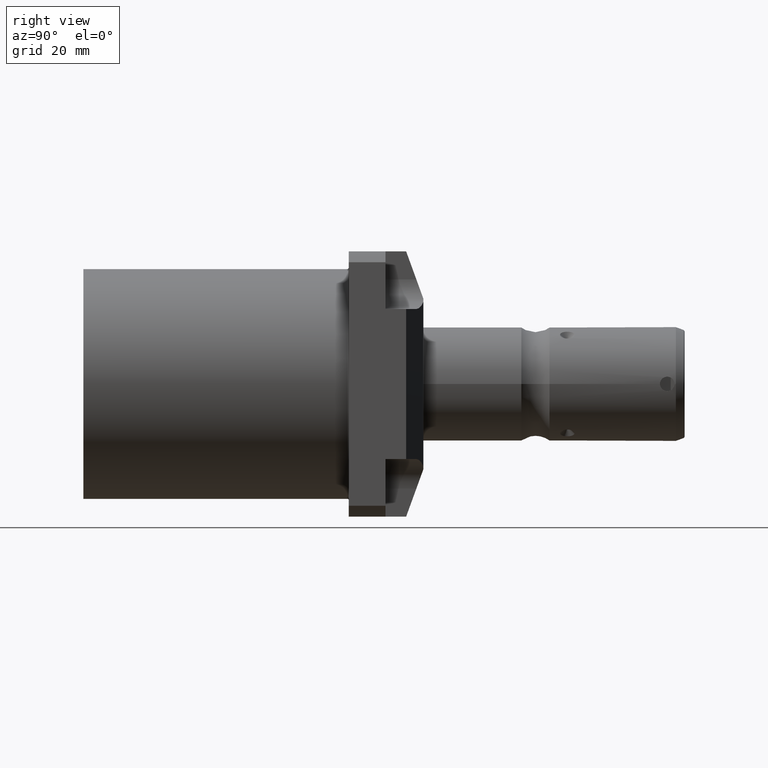
[diagram: clean part render]
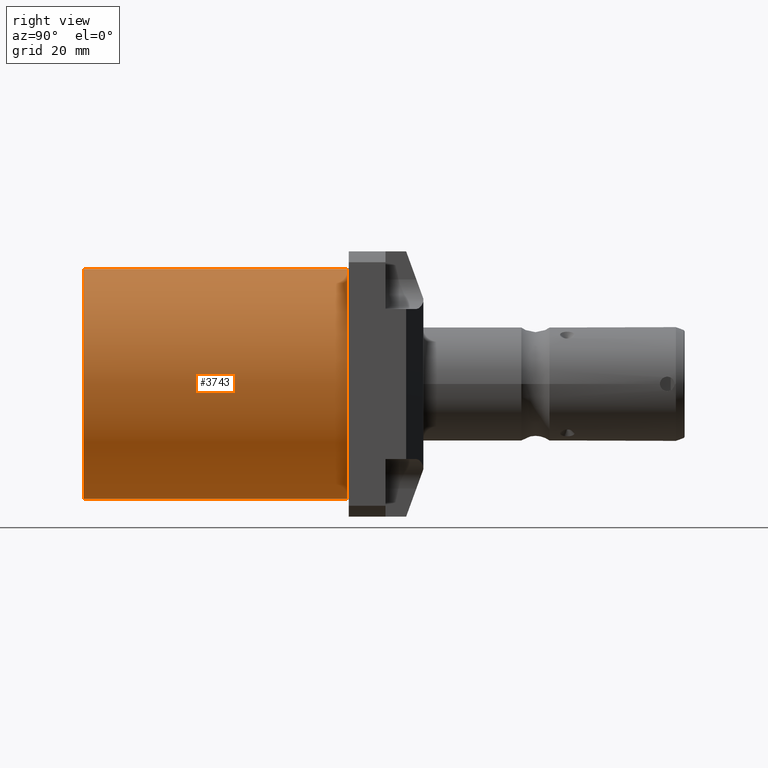
[diagram: same view with one face highlighted and labeled with its STEP entity id]
A machine part, right view. The second image highlights one B-rep face of the part: STEP entity #3743.
In plain terms, the highlighted cylindrical surface (partial cylindrical patch) has radius 38.4935 mm, axis along (0, -1, 0).
Its self-contained STEP definition (entity closure, byte-faithful):
#1251=CARTESIAN_POINT('',(0.E0,8.8519E1,0.E0));
#1252=DIRECTION('',(0.E0,-1.E0,0.E0));
#1253=DIRECTION('',(0.E0,0.E0,-1.E0));
#1254=AXIS2_PLACEMENT_3D('',#1251,#1252,#1253);
#1271=DIRECTION('',(8.172650207804E-13,1.E0,0.E0));
#1272=VECTOR('',#1271,8.8519E1);
#1273=CARTESIAN_POINT('',(0.E0,0.E0,-3.84935E1));
#1274=LINE('',#1273,#1272);
#1275=DIRECTION('',(-8.172188836338E-13,1.E0,0.E0));
#1276=VECTOR('',#1275,8.8519E1);
#1277=CARTESIAN_POINT('',(0.E0,0.E0,3.84935E1));
#1278=LINE('',#1277,#1276);
#1284=CARTESIAN_POINT('',(0.E0,-2.842170943040E-14,0.E0));
#1285=DIRECTION('',(0.E0,-1.E0,0.E0));
#1286=DIRECTION('',(0.E0,0.E0,-1.E0));
#1287=AXIS2_PLACEMENT_3D('',#1284,#1285,#1286);
#1610=CARTESIAN_POINT('',(0.E0,-2.842170943040E-14,3.84935E1));
#1611=CARTESIAN_POINT('',(0.E0,-2.842170943040E-14,-3.84935E1));
#1612=VERTEX_POINT('',#1610);
#1613=VERTEX_POINT('',#1611);
#1664=CARTESIAN_POINT('',(0.E0,8.8519E1,-3.84935E1));
#1665=CARTESIAN_POINT('',(0.E0,8.8519E1,3.84935E1));
#1666=VERTEX_POINT('',#1664);
#1667=VERTEX_POINT('',#1665);
#3731=CARTESIAN_POINT('',(0.E0,9.3345E1,0.E0));
#3732=DIRECTION('',(0.E0,-1.E0,0.E0));
#3733=DIRECTION('',(0.E0,0.E0,1.E0));
#3734=AXIS2_PLACEMENT_3D('',#3731,#3732,#3733);
#3735=CYLINDRICAL_SURFACE('',#3734,3.84935E1);
#3736=ORIENTED_EDGE('',*,*,#3696,.F.);
#3737=ORIENTED_EDGE('',*,*,#3726,.F.);
#3739=ORIENTED_EDGE('',*,*,#3738,.T.);
#3740=ORIENTED_EDGE('',*,*,#3722,.T.);
#3741=EDGE_LOOP('',(#3736,#3737,#3739,#3740));
#3742=FACE_OUTER_BOUND('',#3741,.F.);
#1255=CIRCLE('',#1254,3.84935E1);
#1288=CIRCLE('',#1287,3.84935E1);
#3696=EDGE_CURVE('',#1666,#1667,#1255,.T.);
#3722=EDGE_CURVE('',#1612,#1667,#1278,.T.);
#3726=EDGE_CURVE('',#1613,#1666,#1274,.T.);
#3738=EDGE_CURVE('',#1613,#1612,#1288,.T.);
#3743=ADVANCED_FACE('',(#3742),#3735,.T.);